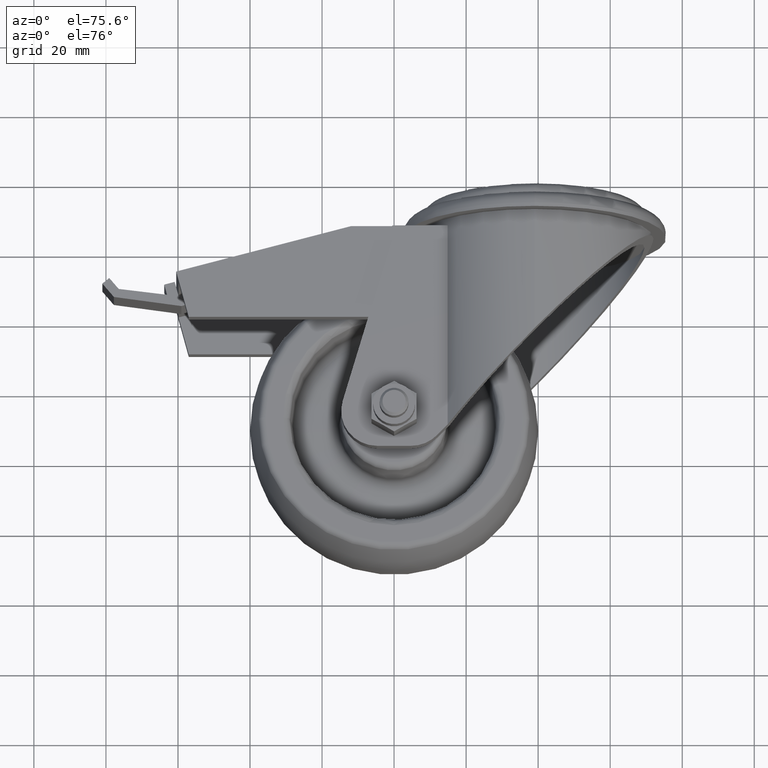
[diagram: clean part render]
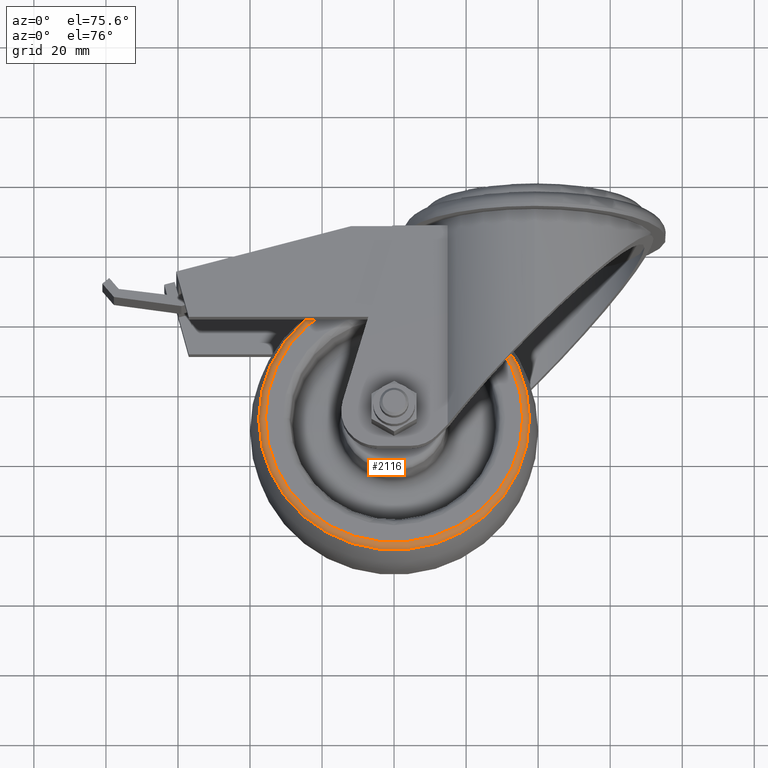
[diagram: same view with one face highlighted and labeled with its STEP entity id]
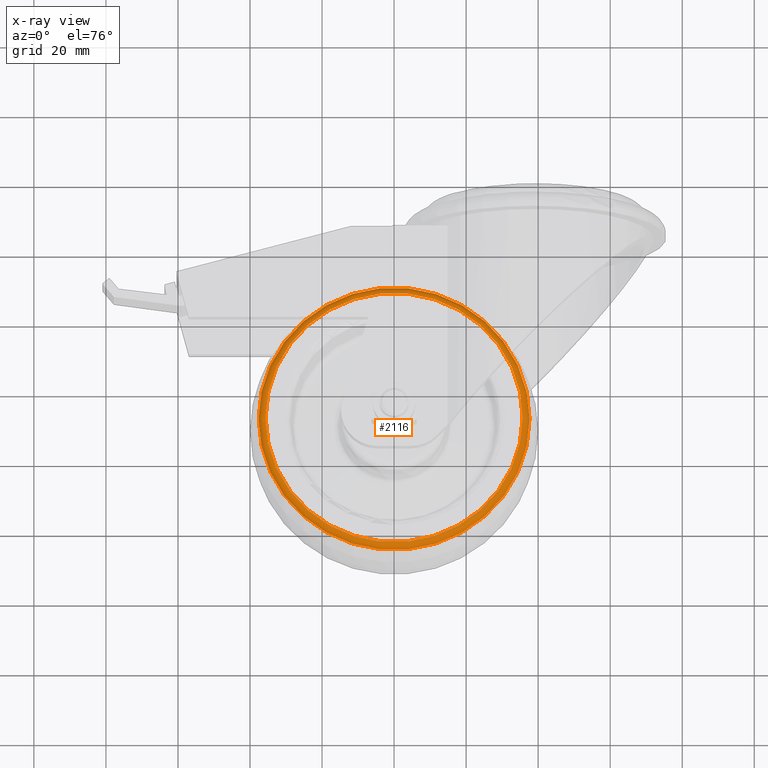
[diagram: x-ray of the same camera — body ghosted, the highlighted face saturated]
A machine part, auxiliary view. The second image highlights one B-rep face of the part: STEP entity #2116.
The next image is the same camera in x-ray: the body ghosted, the highlighted face saturated — about 0% of this face is hidden behind the body in this view.
In plain terms, the highlighted toroidal blend (fillet) surface has major radius 35.7071 mm and minor (blend) radius 2 mm.
Its self-contained STEP definition (entity closure, byte-faithful):
#147=TOROIDAL_SURFACE('',#2464,35.7071421427143,1.99999999999999);
#360=FACE_OUTER_BOUND('',#509,.T.);
#509=EDGE_LOOP('',(#1958,#1959,#1960,#1961));
#597=CIRCLE('',#2439,35.7071421427142);
#613=CIRCLE('',#2465,1.99999999999999);
#614=CIRCLE('',#2466,37.5864654133834);
#1068=VERTEX_POINT('',#3766);
#1080=VERTEX_POINT('',#3807);
#1354=EDGE_CURVE('',#1068,#1068,#597,.T.);
#1373=EDGE_CURVE('',#1068,#1080,#613,.T.);
#1374=EDGE_CURVE('',#1080,#1080,#614,.T.);
#1958=ORIENTED_EDGE('',*,*,#1354,.F.);
#1959=ORIENTED_EDGE('',*,*,#1373,.T.);
#1960=ORIENTED_EDGE('',*,*,#1374,.T.);
#1961=ORIENTED_EDGE('',*,*,#1373,.F.);
#2116=ADVANCED_FACE('',(#360),#147,.T.);
#2439=AXIS2_PLACEMENT_3D('',#3767,#3031,#3032);
#2464=AXIS2_PLACEMENT_3D('',#3806,#3084,#3085);
#2465=AXIS2_PLACEMENT_3D('',#3808,#3086,#3087);
#2466=AXIS2_PLACEMENT_3D('',#3809,#3088,#3089);
#3031=DIRECTION('center_axis',(0.,0.,1.));
#3032=DIRECTION('ref_axis',(1.,0.,0.));
#3084=DIRECTION('center_axis',(0.,0.,1.));
#3085=DIRECTION('ref_axis',(1.,0.,0.));
#3086=DIRECTION('center_axis',(1.22464679914735E-16,-1.,0.));
#3087=DIRECTION('ref_axis',(-1.,-1.22464679914735E-16,0.));
#3088=DIRECTION('center_axis',(0.,0.,1.));
#3089=DIRECTION('ref_axis',(1.,0.,0.));
#3766=CARTESIAN_POINT('',(-35.7071421427142,-4.37286373317745E-15,15.));
#3767=CARTESIAN_POINT('Origin',(0.,0.,15.));
#3806=CARTESIAN_POINT('Origin',(0.,0.,13.));
#3807=CARTESIAN_POINT('',(-37.5864654133834,-4.60301445597627E-15,13.6842105263158));
#3808=CARTESIAN_POINT('Origin',(-35.7071421427143,-4.37286373317746E-15,
13.));
#3809=CARTESIAN_POINT('Origin',(0.,0.,13.6842105263158));